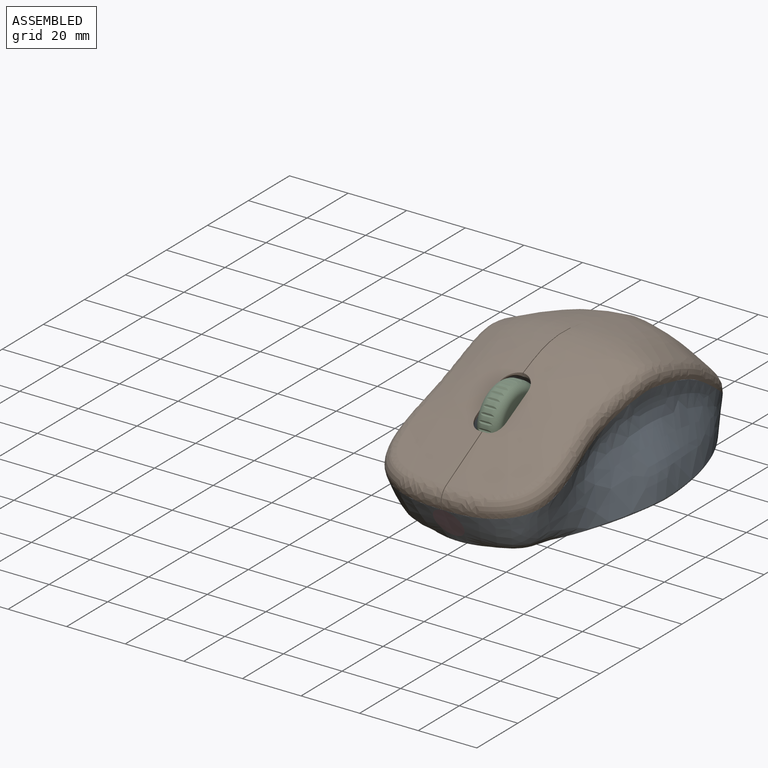
[diagram: assembled view]
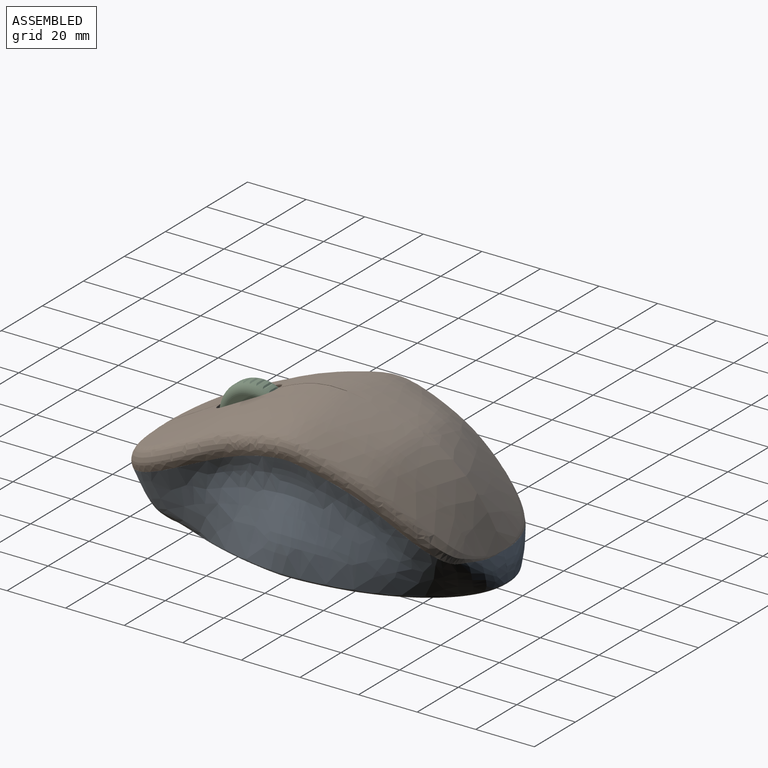
[diagram: assembled view, second angle]
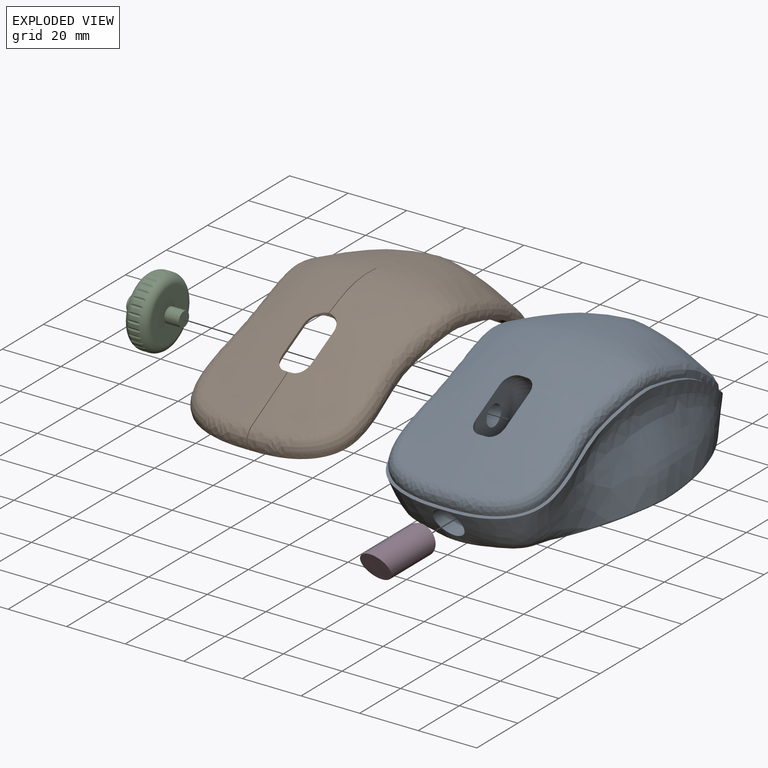
[diagram: exploded view]
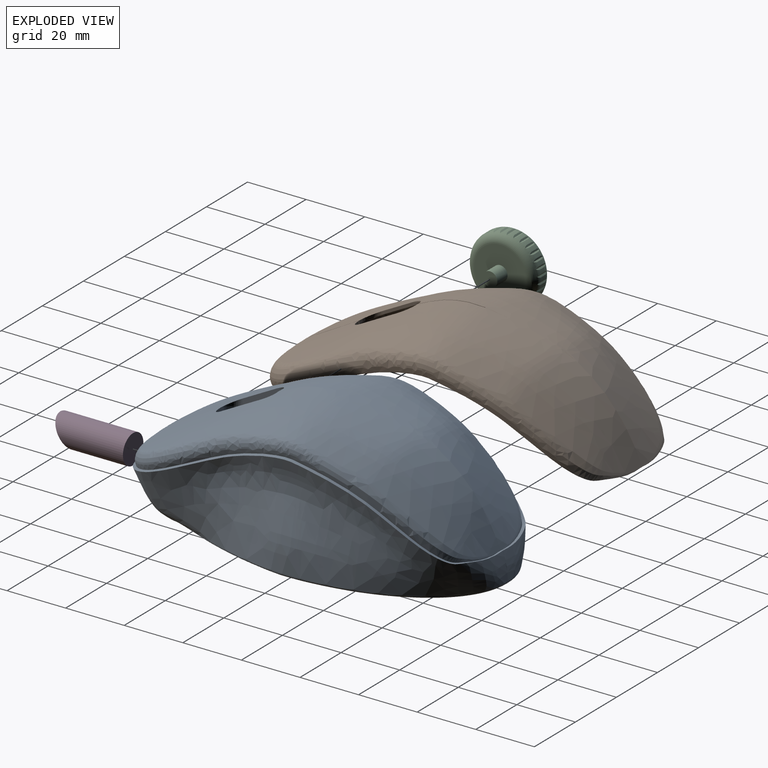
[diagram: exploded view, second angle]
ASSEMBLY  parts=4 mates=3
PART A: 32 faces, bbox 92.6x133.5x51.1 mm
  f0: bspline ~121.39x43.19mm, area 3173.1mm2, adj f2,f3,f5,f6,f8,f17,f18,f30
  f1: bspline ~121.39x43.19mm, area 3176.7mm2, adj f2,f3,f5,f6,f9,f19,f20,f30
  f2: bspline ~3.17x1.87mm, area 0mm2, adj f0,f1,f18,f19,f30
  f3: bspline ~3.52x2.07mm, area 0.2mm2, adj f0,f1,f10,f30
  f4: plane 108.43x62.23mm, normal (0,0,-1), area 5218.5mm2, adj f7,f8,f9,f10
  f5: bspline ~3.16x0.22mm, area 0.1mm2, adj f0,f1,f7
  f6: bspline ~6.38x1.5mm, area 0mm2, adj f0,f1
  f7: bspline ~1.04x1.03mm, area 0.2mm2, adj f4,f5,f8,f9
  f8: bspline ~110.31x33.29mm, area 175.3mm2, adj f0,f4,f7,f10
  f9: bspline ~110.32x33.29mm, area 175.3mm2, adj f1,f4,f7,f10
  f10: bspline ~0.86x0.49mm, area 0mm2, adj f3,f4,f8,f9
  f11: bspline ~114.47x29.65mm, area 833.7mm2, adj f13,f16,f17,f18
  f12: bspline ~116x29.71mm, area 834.7mm2, adj f14,f15,f19,f20
  f13: offset ~122.62x43.46mm, area 2826mm2, adj f11,f14,f16,f17,f21,f22,f24
  f14: offset ~122.62x43.46mm, area 2825.6mm2, adj f12,f13,f15,f20,f23,f24,f25
  f15: bspline ~5.57x3.63mm, area 1mm2, adj f12,f14,f16,f19
  f16: bspline ~5.49x1.98mm, area 1.1mm2, adj f11,f13,f15,f18
  f17: bspline ~61.95x40.6mm, area 75.9mm2, adj f0,f11,f13,f18,f20
  f18: bspline ~69.89x45.65mm, area 77.7mm2, adj f0,f2,f11,f16,f17,f19
  f19: bspline ~69.47x45.65mm, area 97mm2, adj f1,f2,f12,f15,f18,f20
  f20: bspline ~62.61x40.47mm, area 75.7mm2, adj f1,f12,f14,f17,f19
  f21: plane 17.63x17.14mm, normal (-1,0,0), area 180.8mm2, adj f13,f22,f27
  f22: torus R=8.81mm, axis (1,0,0), area 303.2mm2, adj f13,f21,f24
  f23: plane 17.63x17.14mm, normal (1,0,0), area 180.8mm2, adj f14,f25,f28
  f24: cylinder r=12.81mm len=25.63mm, axis (1,0,0), area 105.6mm2, adj f13,f14,f22,f25
  f25: torus R=8.81mm, axis (1,0,0), area 303.2mm2, adj f14,f23,f24
  f26: plane 7x7mm, normal (-1,0,0), area 38.5mm2, adj f27
  f27: cylinder r=3.5mm len=7mm, axis (1,0,0), area 110mm2, adj f21,f26
  f28: cylinder r=3.5mm len=7mm, axis (1,0,0), area 110mm2, adj f23,f29
  f29: plane 7x7mm, normal (1,0,0), area 38.5mm2, adj f28
  f30: cylinder r=5mm len=99.9mm, axis (0,1,0), area 3046.6mm2, adj f0,f1,f2,f3,f31
  f31: plane 10x10mm, normal (0,-1,0), area 78.5mm2, adj f30
PART B: 42 faces, bbox 92.6x133.5x42.8 mm
  f0: offset ~122.13x42.77mm, area 2812.1mm2, adj f2,f12,f18,f19,f24,f25,f28,f38
  f1: plane 20.03x16.75mm, normal (-1,0,0), area 26.9mm2, adj f3,f4,f6,f8,f9,f32
  f2: plane 20.04x16.78mm, normal (1,0,0), area 26.6mm2, adj f0,f13,f15,f17,f18,f30
  f3: bspline ~119.88x40.41mm, area 2897.9mm2, adj f1,f4,f5,f11,f21,f22,f31,f32
  f4: bspline ~6.91x4.44mm, area 0.5mm2, adj f1,f3,f5,f6
  f5: bspline ~118.31x30.49mm, area 1057.4mm2, adj f3,f4,f6,f7,f20
  f6: bspline ~69.89x45.65mm, area 89.4mm2, adj f1,f4,f5,f7,f8,f10
  f7: bspline ~61.42x40.46mm, area 75mm2, adj f5,f6,f10,f26
  f8: bspline ~5.49x1.98mm, area 0.4mm2, adj f1,f6,f9,f10
  f9: offset ~122.13x42.77mm, area 2814.4mm2, adj f1,f8,f10,f11,f24,f25,f31,f34
  f10: bspline ~114.47x29.65mm, area 834.5mm2, adj f6,f7,f8,f9,f27
  f11: plane 23.23x6.41mm, normal (-1,0,0), area 24.3mm2, adj f3,f9,f23,f33
  f12: plane 23.22x6.37mm, normal (1,0,0), area 24.1mm2, adj f0,f13,f23,f29
  f13: bspline ~119.88x40.41mm, area 2897.7mm2, adj f2,f12,f14,f15,f21,f22,f28,f29
  f14: bspline ~118.31x30.49mm, area 1058mm2, adj f13,f15,f16,f17,f20
  f15: bspline ~6.94x4.49mm, area 0.5mm2, adj f2,f13,f14,f17
  f16: bspline ~62.7x40.68mm, area 71.8mm2, adj f14,f17,f19,f26
  f17: bspline ~69.47x45.65mm, area 73.3mm2, adj f2,f14,f15,f16,f18,f19
  f18: bspline ~5.49x1.98mm, area 0.4mm2, adj f0,f2,f17,f19
  f19: bspline ~114.47x29.7mm, area 834.5mm2, adj f0,f16,f17,f18,f27
  f20: extruded ~0.2x0.02mm, area 0mm2, adj f5,f14,f21,f26
  f21: extruded ~45.09x33.87mm, area 12mm2, adj f3,f13,f20,f22
  f22: extruded ~8.19x1.12mm, area 1.7mm2, adj f3,f13,f21,f23
  f23: plane 1x0.2mm, normal (0,-1,0), area 0.2mm2, adj f11,f12,f22,f24
  f24: extruded ~40.58x15.85mm, area 8.8mm2, adj f0,f9,f23,f25
  f25: extruded ~18.47x11.76mm, area 4.4mm2, adj f0,f9,f24,f27
  f26: plane 1.88x1.27mm, normal (0,0.33,-0.94), area 0.2mm2, adj f7,f16,f20,f27
  f27: plane 0.2x0.01mm, normal (0,-0.95,-0.31), area 0mm2, adj f10,f19,f25,f26
  f28: plane 11.41x6.87mm, normal (1,0,0), area 12.1mm2, adj f0,f13,f29,f39,f40
  f29: cylinder r=5mm len=5mm, axis (0,0,-1), area 4.4mm2, adj f12,f13,f28,f40,f41
  f30: cylinder r=5mm len=1.14mm, axis (0,0,-1), area 0.4mm2, adj f2,f13,f38
  f31: plane 11.41x6.87mm, normal (-1,0,0), area 12.1mm2, adj f3,f9,f33,f34,f37
  f32: cylinder r=5mm len=1.14mm, axis (0,0,-1), area 0.4mm2, adj f1,f3,f36
  f33: cylinder r=5mm len=5mm, axis (0,0,-1), area 4.4mm2, adj f3,f11,f31,f34,f35
  f34: torus R=8.81mm, axis (1,0,0), area 4.3mm2, adj f9,f31,f33,f35
  f35: cylinder r=12.81mm len=0.9mm, axis (1,0,0), area 0.1mm2, adj f9,f33,f34
  f36: cylinder r=12.81mm len=1.19mm, axis (1,0,0), area 0.7mm2, adj f3,f9,f32,f37
  f37: torus R=8.81mm, axis (1,0,0), area 7.9mm2, adj f3,f9,f31,f36
  f38: cylinder r=12.81mm len=1.19mm, axis (1,0,0), area 0.7mm2, adj f0,f13,f30,f39
  f39: torus R=8.81mm, axis (1,0,0), area 7.9mm2, adj f0,f13,f28,f38
  f40: torus R=8.81mm, axis (1,0,0), area 4.3mm2, adj f0,f28,f29,f41
  f41: cylinder r=12.81mm len=0.9mm, axis (1,0,0), area 0.1mm2, adj f0,f29,f40
PART C: 104 faces, bbox 18x25.6x25.6 mm
  f0: cylinder r=11.81mm len=2mm, axis (1,0,0), area 2.6mm2, adj f34,f35,f40,f102
  f1: cylinder r=11.81mm len=2mm, axis (1,0,0), area 2.6mm2, adj f34,f35,f100,f103
  f2: cylinder r=11.81mm len=2mm, axis (1,0,0), area 2.6mm2, adj f34,f35,f98,f101
  f3: cylinder r=11.81mm len=2mm, axis (1,0,0), area 2.6mm2, adj f34,f35,f96,f99
  f4: cylinder r=11.81mm len=2mm, axis (1,0,0), area 2.6mm2, adj f34,f35,f94,f97
  f5: cylinder r=11.81mm len=2mm, axis (1,0,0), area 2.6mm2, adj f34,f35,f92,f95
  f6: cylinder r=11.81mm len=2mm, axis (1,0,0), area 2.6mm2, adj f34,f35,f90,f93
  f7: cylinder r=11.81mm len=2mm, axis (1,0,0), area 2.6mm2, adj f34,f35,f88,f91
  f8: cylinder r=11.81mm len=2mm, axis (1,0,0), area 2.6mm2, adj f34,f35,f86,f89
  f9: cylinder r=11.81mm len=2mm, axis (1,0,0), area 2.6mm2, adj f34,f35,f84,f87
  f10: cylinder r=11.81mm len=2mm, axis (1,0,0), area 2.6mm2, adj f34,f35,f82,f85
  f11: cylinder r=11.81mm len=2mm, axis (1,0,0), area 2.6mm2, adj f34,f35,f80,f83
  f12: cylinder r=11.81mm len=2mm, axis (1,0,0), area 2.6mm2, adj f34,f35,f78,f81
  f13: cylinder r=11.81mm len=2mm, axis (1,0,0), area 2.6mm2, adj f34,f35,f76,f79
  f14: cylinder r=11.81mm len=2mm, axis (1,0,0), area 2.6mm2, adj f34,f35,f74,f77
  f15: cylinder r=11.81mm len=2mm, axis (1,0,0), area 2.6mm2, adj f34,f35,f72,f75
  f16: cylinder r=11.81mm len=2mm, axis (1,0,0), area 2.6mm2, adj f34,f35,f70,f73
  f17: cylinder r=11.81mm len=2mm, axis (1,0,0), area 2.6mm2, adj f34,f35,f68,f71
  f18: cylinder r=11.81mm len=2mm, axis (1,0,0), area 2.6mm2, adj f34,f35,f66,f69
  f19: cylinder r=11.81mm len=2mm, axis (1,0,0), area 2.6mm2, adj f34,f35,f64,f67
  f20: cylinder r=11.81mm len=2mm, axis (1,0,0), area 2.6mm2, adj f34,f35,f62,f65
  f21: cylinder r=11.81mm len=2mm, axis (1,0,0), area 2.6mm2, adj f34,f35,f60,f63
  f22: cylinder r=11.81mm len=2mm, axis (1,0,0), area 2.6mm2, adj f34,f35,f58,f61
  f23: cylinder r=11.81mm len=2mm, axis (1,0,0), area 2.6mm2, adj f34,f35,f56,f59
  f24: cylinder r=11.81mm len=2mm, axis (1,0,0), area 2.6mm2, adj f34,f35,f54,f57
  f25: cylinder r=11.81mm len=2mm, axis (1,0,0), area 2.6mm2, adj f34,f35,f52,f55
  f26: cylinder r=11.81mm len=2mm, axis (1,0,0), area 2.6mm2, adj f34,f35,f50,f53
  f27: cylinder r=11.81mm len=2mm, axis (1,0,0), area 2.6mm2, adj f34,f35,f48,f51
  f28: cylinder r=11.81mm len=2mm, axis (1,0,0), area 2.6mm2, adj f34,f35,f46,f49
  f29: cylinder r=11.81mm len=2mm, axis (1,0,0), area 2.6mm2, adj f34,f35,f44,f47
  f30: cylinder r=11.81mm len=2mm, axis (1,0,0), area 2.6mm2, adj f34,f35,f42,f45
  f31: cylinder r=11.81mm len=2mm, axis (1,0,0), area 2.6mm2, adj f34,f35,f41,f43
  f32: plane 17.63x17.63mm, normal (-1,0,0), area 224.4mm2, adj f34,f38
  f33: plane 17.63x17.63mm, normal (1,0,0), area 224.4mm2, adj f35,f37
  f34: torus R=8.81mm, axis (1,0,0), area 287.9mm2, adj f0,f1,f2,f3,f4,f5,f6,f7
  f35: torus R=8.81mm, axis (1,0,0), area 287.9mm2, adj f0,f1,f2,f3,f4,f5,f6,f7
  f36: plane 5x5mm, normal (1,0,0), area 19.6mm2, adj f37
  f37: cylinder r=2.5mm len=5mm, axis (1,0,0), area 78.5mm2, adj f33,f36
  f38: cylinder r=2.5mm len=5mm, axis (1,0,0), area 78.5mm2, adj f32,f39
  f39: plane 5x5mm, normal (-1,0,0), area 19.6mm2, adj f38
  f40: plane 4.67x0.5mm, normal (0,0.52,0.86), area 2.2mm2, adj f0,f34,f35,f41
  f41: plane 4.67x0.5mm, normal (0,-0.52,0.86), area 2.2mm2, adj f31,f34,f35,f40
  f42: plane 4.67x0.55mm, normal (0,-0.34,0.94), area 2.2mm2, adj f30,f34,f35,f43
  f43: plane 4.67x0.43mm, normal (0,0.67,0.74), area 2.2mm2, adj f31,f34,f35,f42
  f44: plane 4.67x0.58mm, normal (0,-0.15,0.99), area 2.2mm2, adj f29,f34,f35,f45
  f45: plane 4.67x0.47mm, normal (0,0.81,0.59), area 2.2mm2, adj f30,f34,f35,f44
  f46: plane 4.67x0.58mm, normal (0,0.04,1), area 2.2mm2, adj f28,f34,f35,f47
  f47: plane 4.67x0.53mm, normal (0,0.91,0.42), area 2.2mm2, adj f29,f34,f35,f46
  f48: plane 4.67x0.57mm, normal (0,0.24,0.97), area 2.2mm2, adj f27,f34,f35,f49
  f49: plane 4.67x0.57mm, normal (0,0.97,0.24), area 2.2mm2, adj f28,f34,f35,f48
  f50: plane 4.67x0.53mm, normal (0,0.42,0.91), area 2.2mm2, adj f26,f34,f35,f51
  f51: plane 4.67x0.58mm, normal (0,1,0.04), area 2.2mm2, adj f27,f34,f35,f50
  f52: plane 4.67x0.47mm, normal (0,0.59,0.81), area 2.2mm2, adj f25,f34,f35,f53
  f53: plane 4.67x0.58mm, normal (0,0.99,-0.15), area 2.2mm2, adj f26,f34,f35,f52
  f54: plane 4.67x0.43mm, normal (0,0.74,0.67), area 2.2mm2, adj f24,f34,f35,f55
  f55: plane 4.67x0.55mm, normal (0,0.94,-0.34), area 2.2mm2, adj f25,f34,f35,f54
  f56: plane 4.67x0.5mm, normal (0,0.86,0.52), area 2.2mm2, adj f23,f34,f35,f57
  f57: plane 4.67x0.5mm, normal (0,0.86,-0.52), area 2.2mm2, adj f24,f34,f35,f56
  f58: plane 4.67x0.55mm, normal (0,0.94,0.34), area 2.2mm2, adj f22,f34,f35,f59
  f59: plane 4.67x0.43mm, normal (0,0.74,-0.67), area 2.2mm2, adj f23,f34,f35,f58
  f60: plane 4.67x0.58mm, normal (0,0.99,0.15), area 2.2mm2, adj f21,f34,f35,f61
  f61: plane 4.67x0.47mm, normal (0,0.59,-0.81), area 2.2mm2, adj f22,f34,f35,f60
  f62: plane 4.67x0.58mm, normal (0,1,-0.04), area 2.2mm2, adj f20,f34,f35,f63
  f63: plane 4.67x0.53mm, normal (0,0.42,-0.91), area 2.2mm2, adj f21,f34,f35,f62
  f64: plane 4.67x0.57mm, normal (0,0.97,-0.24), area 2.2mm2, adj f19,f34,f35,f65
  f65: plane 4.67x0.57mm, normal (0,0.24,-0.97), area 2.2mm2, adj f20,f34,f35,f64
  f66: plane 4.67x0.53mm, normal (0,0.91,-0.42), area 2.2mm2, adj f18,f34,f35,f67
  f67: plane 4.67x0.58mm, normal (0,0.04,-1), area 2.2mm2, adj f19,f34,f35,f66
  f68: plane 4.67x0.47mm, normal (0,0.81,-0.59), area 2.2mm2, adj f17,f34,f35,f69
  f69: plane 4.67x0.58mm, normal (0,-0.15,-0.99), area 2.2mm2, adj f18,f34,f35,f68
  f70: plane 4.67x0.43mm, normal (0,0.67,-0.74), area 2.2mm2, adj f16,f34,f35,f71
  f71: plane 4.67x0.55mm, normal (0,-0.34,-0.94), area 2.2mm2, adj f17,f34,f35,f70
  f72: plane 4.67x0.5mm, normal (0,0.52,-0.86), area 2.2mm2, adj f15,f34,f35,f73
  f73: plane 4.67x0.5mm, normal (0,-0.52,-0.86), area 2.2mm2, adj f16,f34,f35,f72
  f74: plane 4.67x0.55mm, normal (0,0.34,-0.94), area 2.2mm2, adj f14,f34,f35,f75
  f75: plane 4.67x0.43mm, normal (0,-0.67,-0.74), area 2.2mm2, adj f15,f34,f35,f74
  f76: plane 4.67x0.58mm, normal (0,0.15,-0.99), area 2.2mm2, adj f13,f34,f35,f77
  f77: plane 4.67x0.47mm, normal (0,-0.81,-0.59), area 2.2mm2, adj f14,f34,f35,f76
  f78: plane 4.67x0.58mm, normal (0,-0.04,-1), area 2.2mm2, adj f12,f34,f35,f79
  f79: plane 4.67x0.53mm, normal (0,-0.91,-0.42), area 2.2mm2, adj f13,f34,f35,f78
  f80: plane 4.67x0.57mm, normal (0,-0.24,-0.97), area 2.2mm2, adj f11,f34,f35,f81
  f81: plane 4.67x0.57mm, normal (0,-0.97,-0.24), area 2.2mm2, adj f12,f34,f35,f80
  f82: plane 4.67x0.53mm, normal (0,-0.42,-0.91), area 2.2mm2, adj f10,f34,f35,f83
  f83: plane 4.67x0.58mm, normal (0,-1,-0.04), area 2.2mm2, adj f11,f34,f35,f82
  f84: plane 4.67x0.47mm, normal (0,-0.59,-0.81), area 2.2mm2, adj f9,f34,f35,f85
  f85: plane 4.67x0.58mm, normal (0,-0.99,0.15), area 2.2mm2, adj f10,f34,f35,f84
  f86: plane 4.67x0.43mm, normal (0,-0.74,-0.67), area 2.2mm2, adj f8,f34,f35,f87
  f87: plane 4.67x0.55mm, normal (0,-0.94,0.34), area 2.2mm2, adj f9,f34,f35,f86
  f88: plane 4.67x0.5mm, normal (0,-0.86,-0.52), area 2.2mm2, adj f7,f34,f35,f89
  f89: plane 4.67x0.5mm, normal (0,-0.86,0.52), area 2.2mm2, adj f8,f34,f35,f88
  f90: plane 4.67x0.55mm, normal (0,-0.94,-0.34), area 2.2mm2, adj f6,f34,f35,f91
  f91: plane 4.67x0.43mm, normal (0,-0.74,0.67), area 2.2mm2, adj f7,f34,f35,f90
  f92: plane 4.67x0.58mm, normal (0,-0.99,-0.15), area 2.2mm2, adj f5,f34,f35,f93
  f93: plane 4.67x0.47mm, normal (0,-0.59,0.81), area 2.2mm2, adj f6,f34,f35,f92
  f94: plane 4.67x0.58mm, normal (0,-1,0.04), area 2.2mm2, adj f4,f34,f35,f95
  f95: plane 4.67x0.53mm, normal (0,-0.42,0.91), area 2.2mm2, adj f5,f34,f35,f94
  f96: plane 4.67x0.57mm, normal (0,-0.97,0.24), area 2.2mm2, adj f3,f34,f35,f97
  f97: plane 4.67x0.57mm, normal (0,-0.24,0.97), area 2.2mm2, adj f4,f34,f35,f96
  f98: plane 4.67x0.53mm, normal (0,-0.91,0.42), area 2.2mm2, adj f2,f34,f35,f99
  f99: plane 4.67x0.58mm, normal (0,-0.04,1), area 2.2mm2, adj f3,f34,f35,f98
  f100: plane 4.67x0.47mm, normal (0,-0.81,0.59), area 2.2mm2, adj f1,f34,f35,f101
  f101: plane 4.67x0.58mm, normal (0,0.15,0.99), area 2.2mm2, adj f2,f34,f35,f100
  f102: plane 4.67x0.43mm, normal (0,-0.67,0.74), area 2.2mm2, adj f0,f34,f35,f103
  f103: plane 4.67x0.55mm, normal (0,0.34,0.94), area 2.2mm2, adj f1,f34,f35,f102
PART D: 5 faces, bbox 22.6x25.4x13 mm
  f0: bspline ~13.19x13.01mm, area 0mm2, adj f1,f3
  f1: bspline ~11.22x6.6mm, area 3.5mm2, adj f0,f2,f3
  f2: bspline ~13.19x13.01mm, area 0mm2, adj f1,f3
  f3: cylinder r=5mm len=24.9mm, axis (0,1,0), area 690.4mm2, adj f0,f1,f2,f4
  f4: plane 10x10mm, normal (0,1,0), area 78.5mm2, adj f3
PLACE A at identity fixed
PLACE B at identity
PLACE C rot(axis=(1,0,0),174.8deg) t=(0,-57.98,58.98)mm
PLACE D at identity
MATE fastened B.f4 <-> A.f11  axis (-1,0.02,0.01) through (0.22,-58.15,15.2)mm
MATE revolute C.f37 <-> A.f27  axis (1,0,0) through (0,-30.33,28.17)mm
MATE slider A.f30 <-> D.f3  axis (0,-1,0) through (0,37.54,7.5)mm
